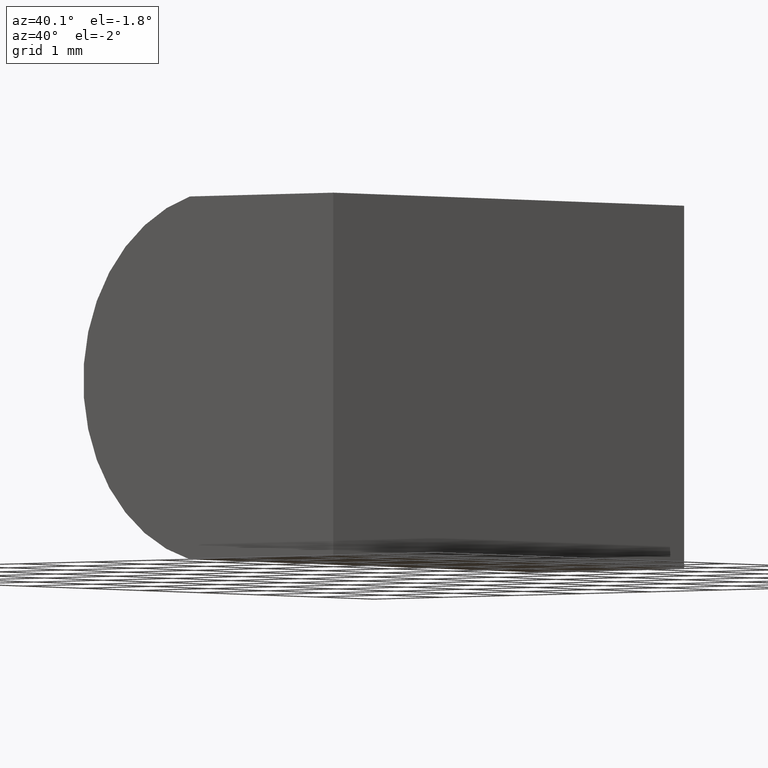
[diagram: clean part render]
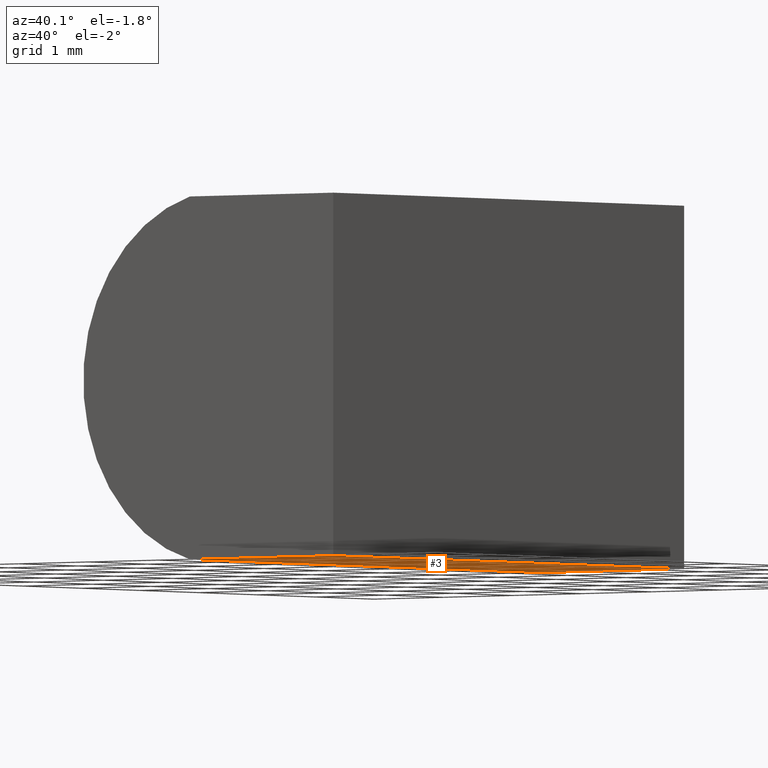
[diagram: same view with one face highlighted and labeled with its STEP entity id]
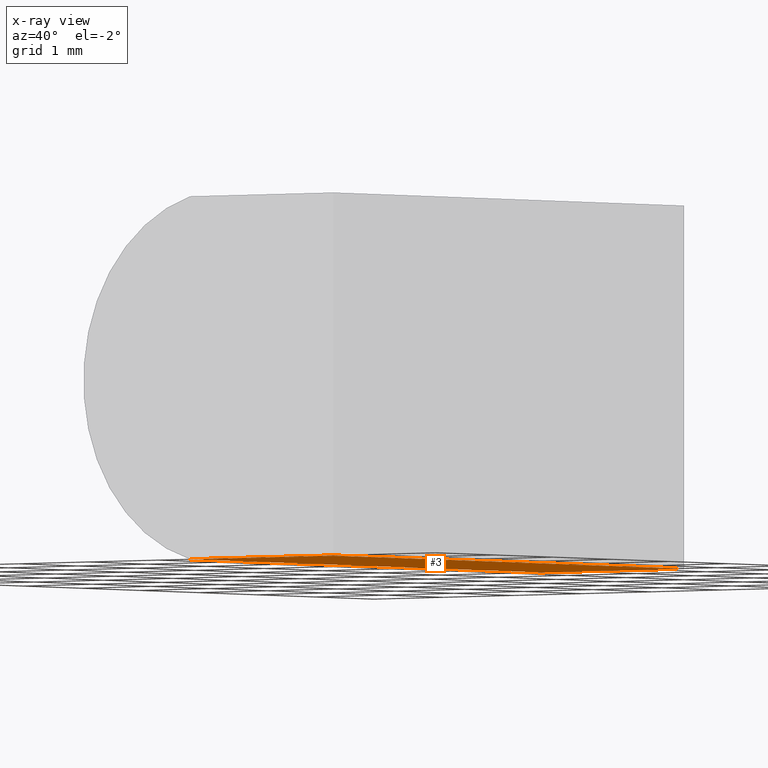
[diagram: x-ray of the same camera — body ghosted, the highlighted face saturated]
A machine part, auxiliary view. The second image highlights one B-rep face of the part: STEP entity #3.
The next image is the same camera in x-ray: the body ghosted, the highlighted face saturated — about 0% of this face is hidden behind the body in this view.
In plain terms, the highlighted planar face has unit normal (0, -0, 1).
Its self-contained STEP definition (entity closure, byte-faithful):
#3 = ADVANCED_FACE ( 'NONE', ( #34 ), #179, .F. ) ;
#4 = CARTESIAN_POINT ( 'NONE',  ( 0.0000000000000000000, 6.000000000000000000, 0.0000000000000000000 ) ) ;
#6 = VECTOR ( 'NONE', #81, 1000.000000000000000 ) ;
#7 = CARTESIAN_POINT ( 'NONE',  ( 0.0000000000000000000, 6.000000000000000000, 0.0000000000000000000 ) ) ;
#12 = CARTESIAN_POINT ( 'NONE',  ( 0.0000000000000000000, 0.0000000000000000000, 0.0000000000000000000 ) ) ;
#16 = ORIENTED_EDGE ( 'NONE', *, *, #108, .F. ) ;
#20 = CARTESIAN_POINT ( 'NONE',  ( -2.063760245803301500, 6.000000000000000000, 4.336808689942017700E-016 ) ) ;
#22 = VERTEX_POINT ( 'NONE', #80 ) ;
#34 = FACE_OUTER_BOUND ( 'NONE', #104, .T. ) ;
#35 = ORIENTED_EDGE ( 'NONE', *, *, #116, .T. ) ;
#36 = DIRECTION ( 'NONE',  ( 4.202822201620565800E-016, -0.0000000000000000000, 1.000000000000000000 ) ) ;
#40 = ORIENTED_EDGE ( 'NONE', *, *, #74, .F. ) ;
#47 = VECTOR ( 'NONE', #202, 1000.000000000000000 ) ;
#49 = AXIS2_PLACEMENT_3D ( 'NONE', #7, #36, #103 ) ;
#52 = CARTESIAN_POINT ( 'NONE',  ( -2.063760245803301500, 0.0000000000000000000, 4.336808689942017700E-016 ) ) ;
#65 = DIRECTION ( 'NONE',  ( -1.000000000000000000, 0.0000000000000000000, 4.202822201620566300E-016 ) ) ;
#74 = EDGE_CURVE ( 'NONE', #124, #160, #96, .T. ) ;
#78 = EDGE_CURVE ( 'NONE', #124, #22, #84, .T. ) ;
#80 = CARTESIAN_POINT ( 'NONE',  ( 0.0000000000000000000, 0.0000000000000000000, 0.0000000000000000000 ) ) ;
#81 = DIRECTION ( 'NONE',  ( -1.000000000000000000, 0.0000000000000000000, 4.202822201620566300E-016 ) ) ;
#84 = LINE ( 'NONE', #200, #163 ) ;
#87 = LINE ( 'NONE', #111, #47 ) ;
#96 = LINE ( 'NONE', #4, #6 ) ;
#103 = DIRECTION ( 'NONE',  ( 1.000000000000000000, 0.0000000000000000000, -4.202822201620565800E-016 ) ) ;
#104 = EDGE_LOOP ( 'NONE', ( #35, #16, #40, #140 ) ) ;
#108 = EDGE_CURVE ( 'NONE', #160, #109, #87, .T. ) ;
#109 = VERTEX_POINT ( 'NONE', #52 ) ;
#111 = CARTESIAN_POINT ( 'NONE',  ( -2.063760245803301500, 6.000000000000000000, 4.336808689942017700E-016 ) ) ;
#116 = EDGE_CURVE ( 'NONE', #22, #109, #162, .T. ) ;
#124 = VERTEX_POINT ( 'NONE', #152 ) ;
#132 = VECTOR ( 'NONE', #65, 1000.000000000000000 ) ;
#140 = ORIENTED_EDGE ( 'NONE', *, *, #78, .T. ) ;
#152 = CARTESIAN_POINT ( 'NONE',  ( 0.0000000000000000000, 6.000000000000000000, 0.0000000000000000000 ) ) ;
#160 = VERTEX_POINT ( 'NONE', #20 ) ;
#162 = LINE ( 'NONE', #12, #132 ) ;
#163 = VECTOR ( 'NONE', #196, 1000.000000000000000 ) ;
#179 = PLANE ( 'NONE',  #49 ) ;
#196 = DIRECTION ( 'NONE',  ( -0.0000000000000000000, -1.000000000000000000, -0.0000000000000000000 ) ) ;
#200 = CARTESIAN_POINT ( 'NONE',  ( 0.0000000000000000000, 6.000000000000000000, 0.0000000000000000000 ) ) ;
#202 = DIRECTION ( 'NONE',  ( -0.0000000000000000000, -1.000000000000000000, -0.0000000000000000000 ) ) ;